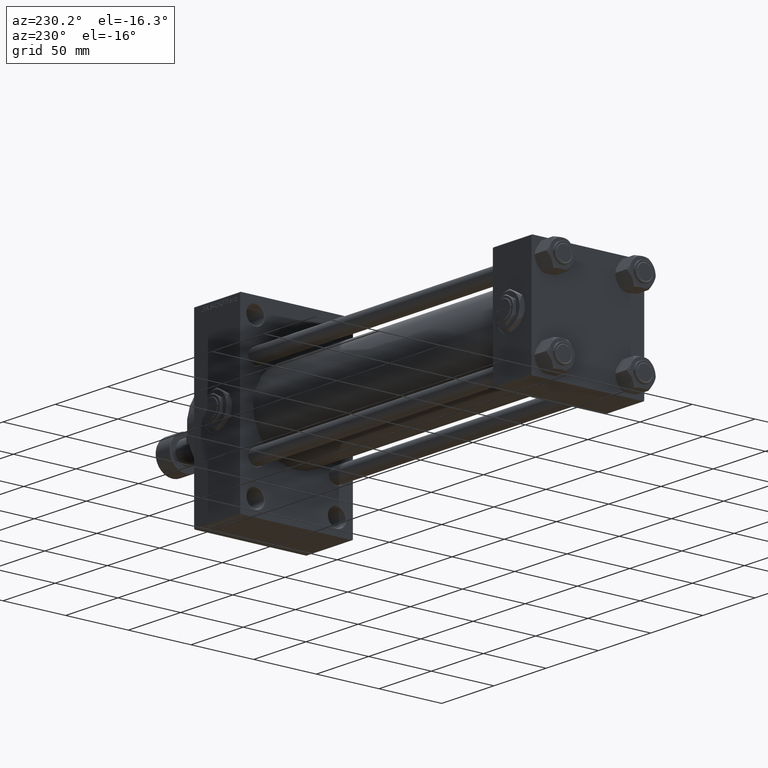
[diagram: clean part render]
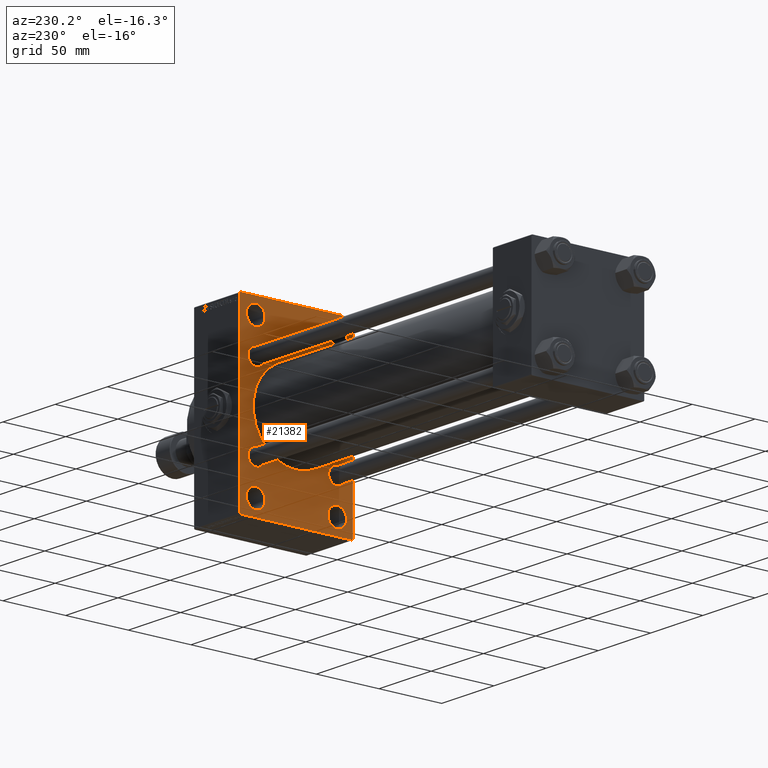
[diagram: same view with one face highlighted and labeled with its STEP entity id]
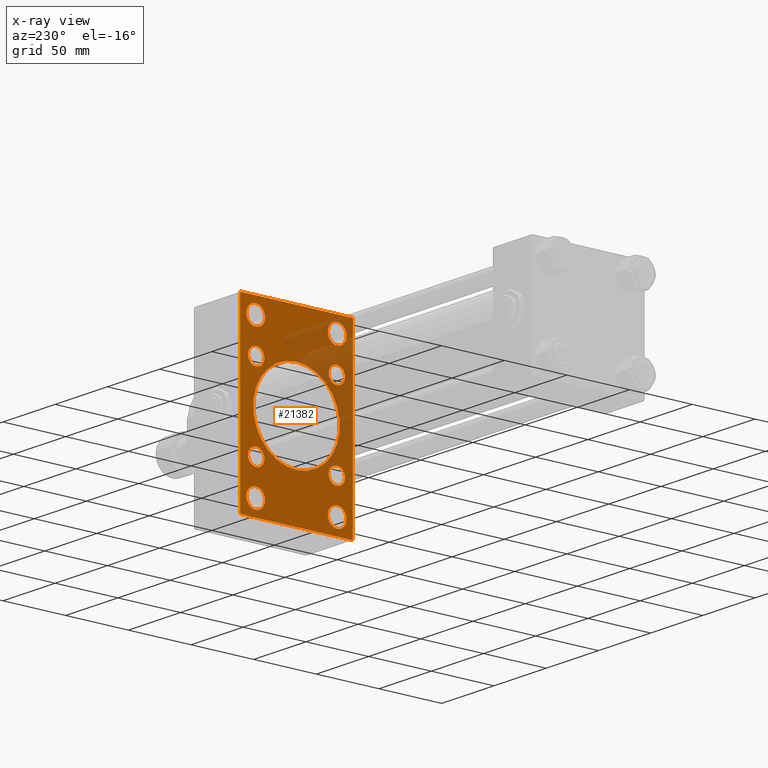
[diagram: x-ray of the same camera — body ghosted, the highlighted face saturated]
A machine part, auxiliary view. The second image highlights one B-rep face of the part: STEP entity #21382.
The next image is the same camera in x-ray: the body ghosted, the highlighted face saturated — about 24% of this face is hidden behind the body in this view.
In plain terms, the highlighted planar face has unit normal (-1, 0, 0).
Its self-contained STEP definition (entity closure, byte-faithful):
#165 = VERTEX_POINT ( 'NONE', #567 ) ;
#538 = ORIENTED_EDGE ( 'NONE', *, *, #9197, .T. ) ;
#567 = CARTESIAN_POINT ( 'NONE',  ( 278.9999999999999432, 1.622946243093158675E-15, -34.50000000000000000 ) ) ;
#642 = CIRCLE ( 'NONE', #24787, 7.500000000000069278 ) ;
#863 = VERTEX_POINT ( 'NONE', #4282 ) ;
#1207 = DIRECTION ( 'NONE',  ( 1.000000000000000000, 0.000000000000000000, 0.000000000000000000 ) ) ;
#1218 = EDGE_LOOP ( 'NONE', ( #43540, #10804 ) ) ;
#1494 = CARTESIAN_POINT ( 'NONE',  ( 278.9999999999999432, -32.50000000000000000, -66.00000000000005684 ) ) ;
#1495 = AXIS2_PLACEMENT_3D ( 'NONE', #29070, #25059, #5947 ) ;
#1639 = VERTEX_POINT ( 'NONE', #11956 ) ;
#1685 = CARTESIAN_POINT ( 'NONE',  ( 278.9999999999999432, -44.50000000000000000, -71.00000000000000000 ) ) ;
#1731 = ORIENTED_EDGE ( 'NONE', *, *, #36778, .T. ) ;
#1782 = FACE_BOUND ( 'NONE', #44587, .T. ) ;
#1948 = ORIENTED_EDGE ( 'NONE', *, *, #19203, .T. ) ;
#2002 = EDGE_LOOP ( 'NONE', ( #24500, #10155 ) ) ;
#2338 = ORIENTED_EDGE ( 'NONE', *, *, #28536, .F. ) ;
#2450 = VERTEX_POINT ( 'NONE', #34584 ) ;
#2578 = DIRECTION ( 'NONE',  ( 0.000000000000000000, 0.000000000000000000, 1.000000000000000000 ) ) ;
#2927 = DIRECTION ( 'NONE',  ( 1.000000000000000000, -0.000000000000000000, 0.000000000000000000 ) ) ;
#3456 = CIRCLE ( 'NONE', #12295, 34.50000000000000000 ) ;
#4282 = CARTESIAN_POINT ( 'NONE',  ( 278.9999999999999432, -44.99999999999997158, -70.50000000000005684 ) ) ;
#4322 = VECTOR ( 'NONE', #18048, 1000.000000000000000 ) ;
#4378 = DIRECTION ( 'NONE',  ( 0.000000000000000000, -4.886545002751570165E-17, -1.000000000000000000 ) ) ;
#4840 = CARTESIAN_POINT ( 'NONE',  ( 278.9999999999999432, 32.14999999999999147, -32.15000000000000568 ) ) ;
#4862 = LINE ( 'NONE', #20885, #11406 ) ;
#5292 = CARTESIAN_POINT ( 'NONE',  ( 278.9999999999999432, -32.50000000000000000, 66.00000000000007105 ) ) ;
#5569 = CARTESIAN_POINT ( 'NONE',  ( 278.9999999999999432, 32.14999999999999147, 32.15000000000000568 ) ) ;
#5710 = VERTEX_POINT ( 'NONE', #43580 ) ;
#5771 = DIRECTION ( 'NONE',  ( 0.000000000000000000, 0.000000000000000000, 1.000000000000000000 ) ) ;
#5947 = DIRECTION ( 'NONE',  ( 0.000000000000000000, 0.000000000000000000, 1.000000000000000000 ) ) ;
#5977 = DIRECTION ( 'NONE',  ( 0.000000000000000000, -0.7071067811865574537, 0.7071067811865376918 ) ) ;
#6162 = CARTESIAN_POINT ( 'NONE',  ( 278.9999999999999432, 32.14999999999999147, -38.65000000000001279 ) ) ;
#6266 = CARTESIAN_POINT ( 'NONE',  ( 278.9999999999999432, -32.50000000000000000, 58.50000000000000711 ) ) ;
#6293 = EDGE_CURVE ( 'NONE', #41584, #43235, #8103, .T. ) ;
#6479 = DIRECTION ( 'NONE',  ( 0.000000000000000000, 0.000000000000000000, -1.000000000000000000 ) ) ;
#6522 = AXIS2_PLACEMENT_3D ( 'NONE', #14675, #49128, #29757 ) ;
#6728 = CARTESIAN_POINT ( 'NONE',  ( 278.9999999999999432, -57.74999999999938893, -57.75000000000100187 ) ) ;
#7150 = LINE ( 'NONE', #34052, #24705 ) ;
#7241 = AXIS2_PLACEMENT_3D ( 'NONE', #41803, #37517, #2578 ) ;
#7657 = CARTESIAN_POINT ( 'NONE',  ( 278.9999999999999432, 32.14999999999999147, 32.15000000000000568 ) ) ;
#7799 = LINE ( 'NONE', #34705, #21324 ) ;
#7982 = DIRECTION ( 'NONE',  ( -0.000000000000000000, 0.7071067811865425767, 0.7071067811865525687 ) ) ;
#8022 = AXIS2_PLACEMENT_3D ( 'NONE', #49238, #17553, #21328 ) ;
#8103 = CIRCLE ( 'NONE', #6522, 7.500000000000062172 ) ;
#8353 = AXIS2_PLACEMENT_3D ( 'NONE', #6266, #40205, #5771 ) ;
#8396 = VERTEX_POINT ( 'NONE', #48894 ) ;
#8475 = CARTESIAN_POINT ( 'NONE',  ( 278.9999999999999432, -57.75000000000031264, 57.74999999999950973 ) ) ;
#9107 = DIRECTION ( 'NONE',  ( -0.000000000000000000, 0.000000000000000000, 1.000000000000000000 ) ) ;
#9197 = EDGE_CURVE ( 'NONE', #34243, #10420, #26704, .T. ) ;
#9331 = ORIENTED_EDGE ( 'NONE', *, *, #35632, .T. ) ;
#9444 = CARTESIAN_POINT ( 'NONE',  ( 278.9999999999999432, -32.14999999999997726, 25.65000000000000213 ) ) ;
#9773 = DIRECTION ( 'NONE',  ( 0.000000000000000000, 0.000000000000000000, 1.000000000000000000 ) ) ;
#9939 = EDGE_CURVE ( 'NONE', #47698, #27819, #45145, .T. ) ;
#10155 = ORIENTED_EDGE ( 'NONE', *, *, #48699, .T. ) ;
#10420 = VERTEX_POINT ( 'NONE', #45729 ) ;
#10543 = DIRECTION ( 'NONE',  ( 0.000000000000000000, 0.000000000000000000, 1.000000000000000000 ) ) ;
#10563 = EDGE_CURVE ( 'NONE', #8396, #14873, #27522, .T. ) ;
#10646 = AXIS2_PLACEMENT_3D ( 'NONE', #19490, #33811, #11192 ) ;
#10804 = ORIENTED_EDGE ( 'NONE', *, *, #10563, .T. ) ;
#11008 = ORIENTED_EDGE ( 'NONE', *, *, #24755, .T. ) ;
#11192 = DIRECTION ( 'NONE',  ( 0.000000000000000000, 0.000000000000000000, 1.000000000000000000 ) ) ;
#11210 = CARTESIAN_POINT ( 'NONE',  ( 278.9999999999999432, 32.50000000000000711, 66.00000000000007105 ) ) ;
#11406 = VECTOR ( 'NONE', #15942, 1000.000000000000000 ) ;
#11586 = AXIS2_PLACEMENT_3D ( 'NONE', #25101, #1207, #47235 ) ;
#11852 = DIRECTION ( 'NONE',  ( 0.000000000000000000, 0.000000000000000000, 1.000000000000000000 ) ) ;
#11898 = VERTEX_POINT ( 'NONE', #11210 ) ;
#11956 = CARTESIAN_POINT ( 'NONE',  ( 278.9999999999999432, 44.50000000000006395, -70.99999999999998579 ) ) ;
#12295 = AXIS2_PLACEMENT_3D ( 'NONE', #44199, #43949, #6479 ) ;
#13151 = VECTOR ( 'NONE', #7982, 999.9999999999998863 ) ;
#13533 = DIRECTION ( 'NONE',  ( 1.000000000000000000, -0.000000000000000000, 0.000000000000000000 ) ) ;
#13676 = EDGE_CURVE ( 'NONE', #14873, #8396, #44499, .T. ) ;
#13734 = EDGE_CURVE ( 'NONE', #40968, #36415, #18014, .T. ) ;
#14080 = ORIENTED_EDGE ( 'NONE', *, *, #36775, .F. ) ;
#14123 = FACE_BOUND ( 'NONE', #18618, .T. ) ;
#14219 = DIRECTION ( 'NONE',  ( 0.000000000000000000, 0.000000000000000000, 1.000000000000000000 ) ) ;
#14273 = DIRECTION ( 'NONE',  ( 0.000000000000000000, 0.000000000000000000, -1.000000000000000000 ) ) ;
#14292 = CARTESIAN_POINT ( 'NONE',  ( 278.9999999999999432, 45.00000000000002132, 70.50000000000000000 ) ) ;
#14487 = AXIS2_PLACEMENT_3D ( 'NONE', #29869, #13533, #9773 ) ;
#14675 = CARTESIAN_POINT ( 'NONE',  ( 278.9999999999999432, 32.50000000000000711, -58.50000000000000000 ) ) ;
#14873 = VERTEX_POINT ( 'NONE', #5292 ) ;
#15942 = DIRECTION ( 'NONE',  ( 0.000000000000000000, -1.000000000000000000, -1.541976423090495633E-16 ) ) ;
#16568 = ORIENTED_EDGE ( 'NONE', *, *, #41739, .T. ) ;
#16892 = CARTESIAN_POINT ( 'NONE',  ( 278.9999999999999432, 0.000000000000000000, 0.000000000000000000 ) ) ;
#17141 = FACE_BOUND ( 'NONE', #38173, .T. ) ;
#17467 = DIRECTION ( 'NONE',  ( 0.000000000000000000, 0.000000000000000000, 1.000000000000000000 ) ) ;
#17553 = DIRECTION ( 'NONE',  ( 1.000000000000000000, -0.000000000000000000, 0.000000000000000000 ) ) ;
#17620 = ORIENTED_EDGE ( 'NONE', *, *, #49444, .T. ) ;
#18014 = CIRCLE ( 'NONE', #28437, 6.500000000000005329 ) ;
#18048 = DIRECTION ( 'NONE',  ( 0.000000000000000000, -1.000000000000000000, -1.541976423090495387E-16 ) ) ;
#18093 = CARTESIAN_POINT ( 'NONE',  ( 278.9999999999999432, -32.14999999999997726, -32.15000000000001279 ) ) ;
#18378 = EDGE_CURVE ( 'NONE', #44007, #36932, #642, .T. ) ;
#18417 = ORIENTED_EDGE ( 'NONE', *, *, #33085, .T. ) ;
#18618 = EDGE_LOOP ( 'NONE', ( #1948, #32904 ) ) ;
#19158 = DIRECTION ( 'NONE',  ( 0.000000000000000000, 0.000000000000000000, 1.000000000000000000 ) ) ;
#19203 = EDGE_CURVE ( 'NONE', #43235, #41584, #48920, .T. ) ;
#19490 = CARTESIAN_POINT ( 'NONE',  ( 278.9999999999999432, 32.50000000000000711, 58.50000000000000711 ) ) ;
#20539 = CIRCLE ( 'NONE', #40632, 7.500000000000069278 ) ;
#20885 = CARTESIAN_POINT ( 'NONE',  ( 278.9999999999999432, 45.00000000000001421, -70.99999999999998579 ) ) ;
#21324 = VECTOR ( 'NONE', #22153, 1000.000000000000114 ) ;
#21328 = DIRECTION ( 'NONE',  ( 0.000000000000000000, 0.000000000000000000, 1.000000000000000000 ) ) ;
#21382 = ADVANCED_FACE ( 'NONE', ( #24682, #44291, #14123, #43798, #17141, #44545, #40761, #28685, #1782, #29439 ), #25426, .T. ) ;
#21494 = DIRECTION ( 'NONE',  ( 1.000000000000000000, -0.000000000000000000, 0.000000000000000000 ) ) ;
#21617 = ORIENTED_EDGE ( 'NONE', *, *, #47613, .T. ) ;
#21659 = CIRCLE ( 'NONE', #8022, 6.500000000000005329 ) ;
#21783 = CARTESIAN_POINT ( 'NONE',  ( 278.9999999999999432, 32.50000000000000711, -66.00000000000005684 ) ) ;
#22075 = LINE ( 'NONE', #6728, #30808 ) ;
#22153 = DIRECTION ( 'NONE',  ( -0.000000000000000000, -0.7071067811865376918, -0.7071067811865573427 ) ) ;
#22159 = DIRECTION ( 'NONE',  ( 0.000000000000000000, 0.000000000000000000, 1.000000000000000000 ) ) ;
#22190 = DIRECTION ( 'NONE',  ( 1.000000000000000000, -0.000000000000000000, 0.000000000000000000 ) ) ;
#22610 = VECTOR ( 'NONE', #14273, 1000.000000000000000 ) ;
#22948 = CARTESIAN_POINT ( 'NONE',  ( 278.9999999999999432, 32.50000000000000711, -58.50000000000000000 ) ) ;
#23158 = VERTEX_POINT ( 'NONE', #1685 ) ;
#23479 = AXIS2_PLACEMENT_3D ( 'NONE', #4840, #27484, #42836 ) ;
#23736 = EDGE_CURVE ( 'NONE', #41282, #25111, #35044, .T. ) ;
#23762 = CARTESIAN_POINT ( 'NONE',  ( 278.9999999999999432, -32.14999999999997726, 38.65000000000002700 ) ) ;
#24005 = ORIENTED_EDGE ( 'NONE', *, *, #9939, .T. ) ;
#24345 = EDGE_LOOP ( 'NONE', ( #16568, #49272 ) ) ;
#24500 = ORIENTED_EDGE ( 'NONE', *, *, #13734, .T. ) ;
#24682 = FACE_BOUND ( 'NONE', #1218, .T. ) ;
#24705 = VECTOR ( 'NONE', #49158, 1000.000000000000114 ) ;
#24755 = EDGE_CURVE ( 'NONE', #11898, #5710, #42558, .T. ) ;
#24787 = AXIS2_PLACEMENT_3D ( 'NONE', #43035, #46535, #11852 ) ;
#25059 = DIRECTION ( 'NONE',  ( 1.000000000000000000, -0.000000000000000000, 0.000000000000000000 ) ) ;
#25101 = CARTESIAN_POINT ( 'NONE',  ( 278.9999999999999432, -2.602085213965210642E-15, 0.000000000000000000 ) ) ;
#25111 = VERTEX_POINT ( 'NONE', #46500 ) ;
#25375 = EDGE_CURVE ( 'NONE', #28721, #30518, #44984, .T. ) ;
#25426 = PLANE ( 'NONE',  #44955 ) ;
#25636 = AXIS2_PLACEMENT_3D ( 'NONE', #44394, #44642, #14219 ) ;
#26392 = CIRCLE ( 'NONE', #1495, 6.500000000000005329 ) ;
#26704 = CIRCLE ( 'NONE', #34741, 6.499999999999999112 ) ;
#27484 = DIRECTION ( 'NONE',  ( 1.000000000000000000, -0.000000000000000000, 0.000000000000000000 ) ) ;
#27522 = CIRCLE ( 'NONE', #48422, 7.500000000000062172 ) ;
#27653 = CIRCLE ( 'NONE', #48523, 6.499999999999999112 ) ;
#27819 = VERTEX_POINT ( 'NONE', #6162 ) ;
#28437 = AXIS2_PLACEMENT_3D ( 'NONE', #18093, #44980, #10543 ) ;
#28517 = ORIENTED_EDGE ( 'NONE', *, *, #25375, .T. ) ;
#28536 = EDGE_CURVE ( 'NONE', #48170, #863, #44447, .T. ) ;
#28680 = DIRECTION ( 'NONE',  ( 1.000000000000000000, -0.000000000000000000, 0.000000000000000000 ) ) ;
#28685 = FACE_BOUND ( 'NONE', #2002, .T. ) ;
#28721 = VERTEX_POINT ( 'NONE', #9444 ) ;
#28725 = CARTESIAN_POINT ( 'NONE',  ( 278.9999999999999432, -32.50000000000000000, -50.99999999999992184 ) ) ;
#28825 = EDGE_CURVE ( 'NONE', #1639, #23158, #4862, .T. ) ;
#29070 = CARTESIAN_POINT ( 'NONE',  ( 278.9999999999999432, -32.14999999999997726, 32.15000000000001279 ) ) ;
#29439 = FACE_OUTER_BOUND ( 'NONE', #39665, .T. ) ;
#29547 = ORIENTED_EDGE ( 'NONE', *, *, #28825, .T. ) ;
#29690 = VERTEX_POINT ( 'NONE', #42125 ) ;
#29749 = EDGE_CURVE ( 'NONE', #5710, #11898, #45166, .T. ) ;
#29757 = DIRECTION ( 'NONE',  ( 0.000000000000000000, 0.000000000000000000, 1.000000000000000000 ) ) ;
#29869 = CARTESIAN_POINT ( 'NONE',  ( 278.9999999999999432, -32.14999999999997726, 32.15000000000001279 ) ) ;
#30132 = ORIENTED_EDGE ( 'NONE', *, *, #41027, .T. ) ;
#30148 = CARTESIAN_POINT ( 'NONE',  ( 278.9999999999999432, 32.50000000000000711, -50.99999999999993605 ) ) ;
#30333 = EDGE_LOOP ( 'NONE', ( #24005, #17620 ) ) ;
#30421 = EDGE_LOOP ( 'NONE', ( #35724, #538 ) ) ;
#30518 = VERTEX_POINT ( 'NONE', #23762 ) ;
#30808 = VECTOR ( 'NONE', #5977, 999.9999999999998863 ) ;
#31102 = LINE ( 'NONE', #8475, #13151 ) ;
#32814 = AXIS2_PLACEMENT_3D ( 'NONE', #22948, #22190, #19158 ) ;
#32896 = VERTEX_POINT ( 'NONE', #40997 ) ;
#32904 = ORIENTED_EDGE ( 'NONE', *, *, #6293, .T. ) ;
#33085 = EDGE_CURVE ( 'NONE', #48170, #32896, #31102, .T. ) ;
#33372 = CARTESIAN_POINT ( 'NONE',  ( 278.9999999999999432, 45.00000000000002132, 71.00000000000000000 ) ) ;
#33443 = EDGE_LOOP ( 'NONE', ( #11008, #34963 ) ) ;
#33811 = DIRECTION ( 'NONE',  ( 1.000000000000000000, -0.000000000000000000, 0.000000000000000000 ) ) ;
#34052 = CARTESIAN_POINT ( 'NONE',  ( 278.9999999999999432, 57.75000000000000000, 57.75000000000000000 ) ) ;
#34079 = CARTESIAN_POINT ( 'NONE',  ( 278.9999999999999432, -44.99999999999997158, 70.50000000000002842 ) ) ;
#34243 = VERTEX_POINT ( 'NONE', #44061 ) ;
#34584 = CARTESIAN_POINT ( 'NONE',  ( 278.9999999999999432, -2.602085213965210642E-15, 34.50000000000000000 ) ) ;
#34705 = CARTESIAN_POINT ( 'NONE',  ( 278.9999999999999432, 57.75000000000064659, -57.74999999999904077 ) ) ;
#34741 = AXIS2_PLACEMENT_3D ( 'NONE', #5569, #44295, #35507 ) ;
#34858 = EDGE_CURVE ( 'NONE', #10420, #34243, #27653, .T. ) ;
#34963 = ORIENTED_EDGE ( 'NONE', *, *, #29749, .T. ) ;
#35044 = LINE ( 'NONE', #42601, #48147 ) ;
#35507 = DIRECTION ( 'NONE',  ( 0.000000000000000000, 0.000000000000000000, 1.000000000000000000 ) ) ;
#35632 = EDGE_CURVE ( 'NONE', #2450, #165, #3456, .T. ) ;
#35724 = ORIENTED_EDGE ( 'NONE', *, *, #34858, .T. ) ;
#36234 = DIRECTION ( 'NONE',  ( -1.000000000000000000, 0.000000000000000000, -0.000000000000000000 ) ) ;
#36415 = VERTEX_POINT ( 'NONE', #39445 ) ;
#36775 = EDGE_CURVE ( 'NONE', #29690, #32896, #45191, .T. ) ;
#36778 = EDGE_CURVE ( 'NONE', #23158, #863, #22075, .T. ) ;
#36819 = CARTESIAN_POINT ( 'NONE',  ( 278.9999999999999432, -32.50000000000000000, 58.50000000000000711 ) ) ;
#36932 = VERTEX_POINT ( 'NONE', #28725 ) ;
#37517 = DIRECTION ( 'NONE',  ( 1.000000000000000000, -0.000000000000000000, 0.000000000000000000 ) ) ;
#37605 = EDGE_CURVE ( 'NONE', #165, #2450, #44484, .T. ) ;
#38173 = EDGE_LOOP ( 'NONE', ( #21617, #28517 ) ) ;
#38316 = DIRECTION ( 'NONE',  ( 0.000000000000000000, 0.000000000000000000, 1.000000000000000000 ) ) ;
#38484 = CIRCLE ( 'NONE', #25636, 6.500000000000005329 ) ;
#39445 = CARTESIAN_POINT ( 'NONE',  ( 278.9999999999999432, -32.14999999999997726, -38.65000000000001990 ) ) ;
#39665 = EDGE_LOOP ( 'NONE', ( #29547, #1731, #2338, #18417, #14080, #45552, #46074, #30132 ) ) ;
#40205 = DIRECTION ( 'NONE',  ( 1.000000000000000000, -0.000000000000000000, 0.000000000000000000 ) ) ;
#40632 = AXIS2_PLACEMENT_3D ( 'NONE', #40757, #28680, #22159 ) ;
#40666 = CARTESIAN_POINT ( 'NONE',  ( 278.9999999999999432, -44.99999999999997158, 70.99999999999998579 ) ) ;
#40757 = CARTESIAN_POINT ( 'NONE',  ( 278.9999999999999432, -32.50000000000000000, -58.49999999999999289 ) ) ;
#40761 = FACE_BOUND ( 'NONE', #30333, .T. ) ;
#40968 = VERTEX_POINT ( 'NONE', #40999 ) ;
#40997 = CARTESIAN_POINT ( 'NONE',  ( 278.9999999999999432, -44.50000000000000711, 70.99999999999998579 ) ) ;
#40999 = CARTESIAN_POINT ( 'NONE',  ( 278.9999999999999432, -32.14999999999997726, -25.65000000000000568 ) ) ;
#41027 = EDGE_CURVE ( 'NONE', #25111, #1639, #7799, .T. ) ;
#41282 = VERTEX_POINT ( 'NONE', #14292 ) ;
#41584 = VERTEX_POINT ( 'NONE', #21783 ) ;
#41739 = EDGE_CURVE ( 'NONE', #36932, #44007, #20539, .T. ) ;
#41803 = CARTESIAN_POINT ( 'NONE',  ( 278.9999999999999432, 32.50000000000000711, 58.50000000000000711 ) ) ;
#42125 = CARTESIAN_POINT ( 'NONE',  ( 278.9999999999999432, 44.50000000000002132, 71.00000000000000000 ) ) ;
#42558 = CIRCLE ( 'NONE', #7241, 7.500000000000062172 ) ;
#42601 = CARTESIAN_POINT ( 'NONE',  ( 278.9999999999999432, 45.00000000000002132, 71.00000000000000000 ) ) ;
#42836 = DIRECTION ( 'NONE',  ( 0.000000000000000000, 0.000000000000000000, 1.000000000000000000 ) ) ;
#43035 = CARTESIAN_POINT ( 'NONE',  ( 278.9999999999999432, -32.50000000000000000, -58.49999999999999289 ) ) ;
#43235 = VERTEX_POINT ( 'NONE', #30148 ) ;
#43540 = ORIENTED_EDGE ( 'NONE', *, *, #13676, .T. ) ;
#43580 = CARTESIAN_POINT ( 'NONE',  ( 278.9999999999999432, 32.50000000000000711, 50.99999999999995026 ) ) ;
#43798 = FACE_BOUND ( 'NONE', #33443, .T. ) ;
#43949 = DIRECTION ( 'NONE',  ( 1.000000000000000000, 0.000000000000000000, 0.000000000000000000 ) ) ;
#44007 = VERTEX_POINT ( 'NONE', #1494 ) ;
#44061 = CARTESIAN_POINT ( 'NONE',  ( 278.9999999999999432, 32.14999999999999147, 25.65000000000000213 ) ) ;
#44199 = CARTESIAN_POINT ( 'NONE',  ( 278.9999999999999432, -2.602085213965210642E-15, 0.000000000000000000 ) ) ;
#44291 = FACE_BOUND ( 'NONE', #24345, .T. ) ;
#44295 = DIRECTION ( 'NONE',  ( 1.000000000000000000, -0.000000000000000000, 0.000000000000000000 ) ) ;
#44394 = CARTESIAN_POINT ( 'NONE',  ( 278.9999999999999432, -32.14999999999997726, -32.15000000000001279 ) ) ;
#44447 = LINE ( 'NONE', #40666, #22610 ) ;
#44484 = CIRCLE ( 'NONE', #11586, 34.50000000000000000 ) ;
#44499 = CIRCLE ( 'NONE', #8353, 7.500000000000062172 ) ;
#44545 = FACE_BOUND ( 'NONE', #30421, .T. ) ;
#44587 = EDGE_LOOP ( 'NONE', ( #9331, #47058 ) ) ;
#44642 = DIRECTION ( 'NONE',  ( 1.000000000000000000, -0.000000000000000000, 0.000000000000000000 ) ) ;
#44848 = EDGE_CURVE ( 'NONE', #29690, #41282, #7150, .T. ) ;
#44955 = AXIS2_PLACEMENT_3D ( 'NONE', #16892, #36234, #9107 ) ;
#44980 = DIRECTION ( 'NONE',  ( 1.000000000000000000, -0.000000000000000000, 0.000000000000000000 ) ) ;
#44984 = CIRCLE ( 'NONE', #14487, 6.500000000000005329 ) ;
#45145 = CIRCLE ( 'NONE', #23479, 6.500000000000005329 ) ;
#45166 = CIRCLE ( 'NONE', #10646, 7.500000000000062172 ) ;
#45191 = LINE ( 'NONE', #33372, #4322 ) ;
#45552 = ORIENTED_EDGE ( 'NONE', *, *, #44848, .T. ) ;
#45729 = CARTESIAN_POINT ( 'NONE',  ( 278.9999999999999432, 32.14999999999999147, 38.65000000000001279 ) ) ;
#46074 = ORIENTED_EDGE ( 'NONE', *, *, #23736, .T. ) ;
#46500 = CARTESIAN_POINT ( 'NONE',  ( 278.9999999999999432, 45.00000000000001421, -70.50000000000001421 ) ) ;
#46535 = DIRECTION ( 'NONE',  ( 1.000000000000000000, -0.000000000000000000, 0.000000000000000000 ) ) ;
#47058 = ORIENTED_EDGE ( 'NONE', *, *, #37605, .T. ) ;
#47235 = DIRECTION ( 'NONE',  ( 0.000000000000000000, 0.000000000000000000, -1.000000000000000000 ) ) ;
#47613 = EDGE_CURVE ( 'NONE', #30518, #28721, #26392, .T. ) ;
#47698 = VERTEX_POINT ( 'NONE', #49445 ) ;
#48147 = VECTOR ( 'NONE', #4378, 1000.000000000000000 ) ;
#48170 = VERTEX_POINT ( 'NONE', #34079 ) ;
#48422 = AXIS2_PLACEMENT_3D ( 'NONE', #36819, #21494, #17467 ) ;
#48523 = AXIS2_PLACEMENT_3D ( 'NONE', #7657, #2927, #38316 ) ;
#48699 = EDGE_CURVE ( 'NONE', #36415, #40968, #38484, .T. ) ;
#48894 = CARTESIAN_POINT ( 'NONE',  ( 278.9999999999999432, -32.50000000000000000, 50.99999999999995026 ) ) ;
#48920 = CIRCLE ( 'NONE', #32814, 7.500000000000062172 ) ;
#49128 = DIRECTION ( 'NONE',  ( 1.000000000000000000, -0.000000000000000000, 0.000000000000000000 ) ) ;
#49158 = DIRECTION ( 'NONE',  ( 0.000000000000000000, 0.7071067811865474617, -0.7071067811865474617 ) ) ;
#49238 = CARTESIAN_POINT ( 'NONE',  ( 278.9999999999999432, 32.14999999999999147, -32.15000000000000568 ) ) ;
#49272 = ORIENTED_EDGE ( 'NONE', *, *, #18378, .T. ) ;
#49444 = EDGE_CURVE ( 'NONE', #27819, #47698, #21659, .T. ) ;
#49445 = CARTESIAN_POINT ( 'NONE',  ( 278.9999999999999432, 32.14999999999999147, -25.64999999999999858 ) ) ;